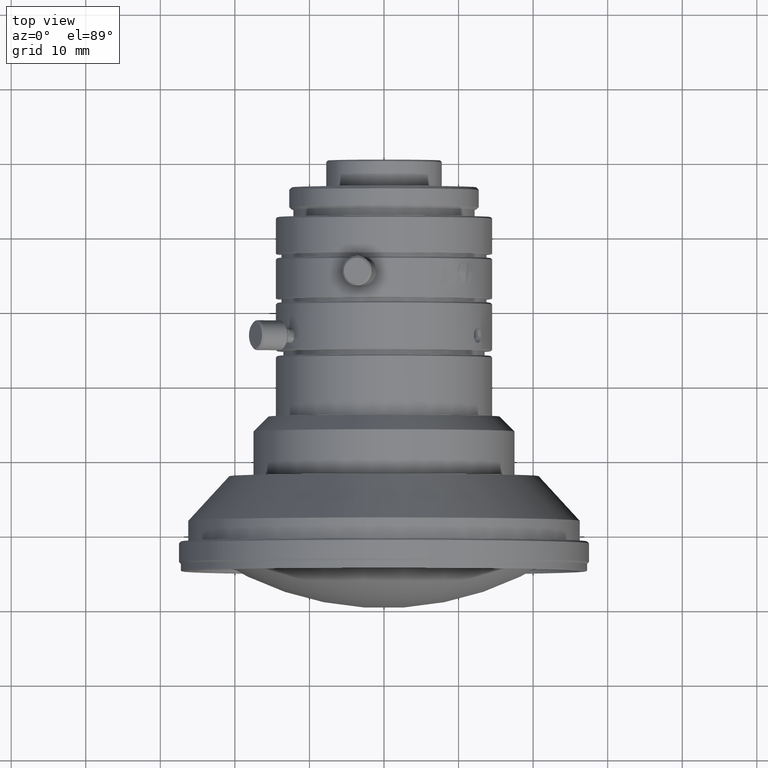
[diagram: clean part render]
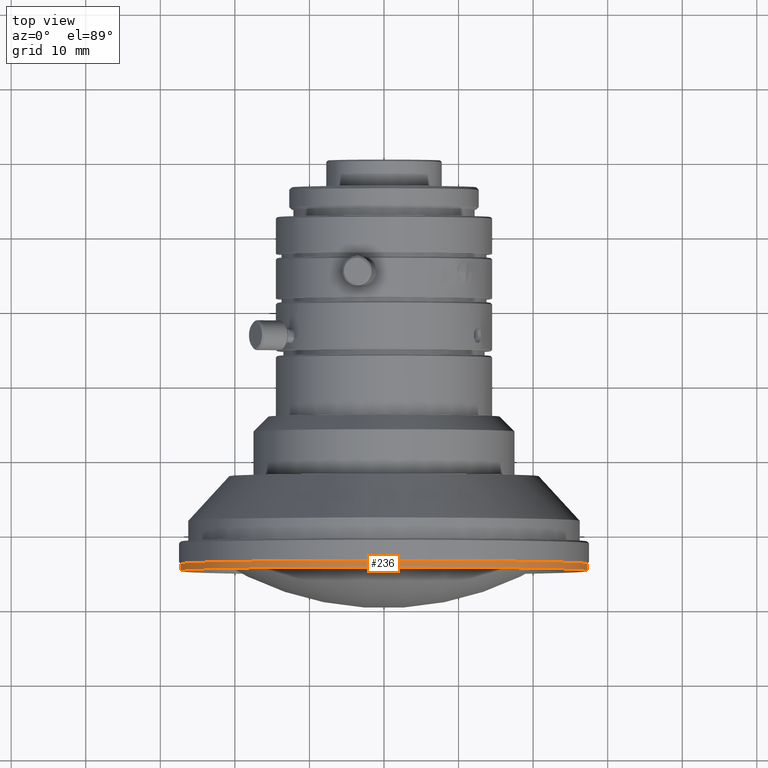
[diagram: same view with one face highlighted and labeled with its STEP entity id]
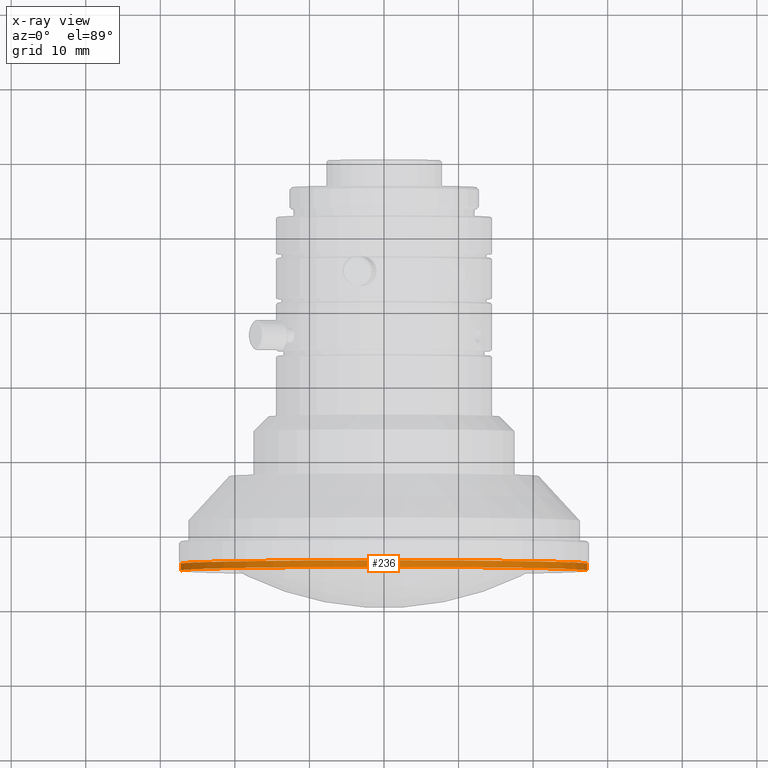
[diagram: x-ray of the same camera — body ghosted, the highlighted face saturated]
A machine part, top view. The second image highlights one B-rep face of the part: STEP entity #236.
The next image is the same camera in x-ray: the body ghosted, the highlighted face saturated — about 0% of this face is hidden behind the body in this view.
In plain terms, the highlighted cylindrical surface (partial cylindrical patch) has radius 27.25 mm, axis along (0, -1, 0).
Its self-contained STEP definition (entity closure, byte-faithful):
#236=ADVANCED_FACE('0:269',(#676),#677,.T.);
#676=FACE_OUTER_BOUND('',#1329,.T.);
#677=CYLINDRICAL_SURFACE('',#1330,0.02725);
#1329=EDGE_LOOP('',(#2680,#2681,#2682,#2683));
#1330=AXIS2_PLACEMENT_3D('',#2684,#2685,#2686);
#2680=ORIENTED_EDGE('',*,*,#4215,.T.);
#2681=ORIENTED_EDGE('',*,*,#4274,.T.);
#2682=ORIENTED_EDGE('',*,*,#4217,.T.);
#2683=ORIENTED_EDGE('',*,*,#4273,.F.);
#2684=CARTESIAN_POINT('',(7.63278329429795E-17,-0.0245252843298144,0.0));
#2685=DIRECTION('',(3.26943875618435E-15,-1.0,0.0));
#2686=DIRECTION('',(1.0,3.26943875618435E-15,0.0));
#4215=EDGE_CURVE('',#5214,#5209,#5215,.T.);
#4217=EDGE_CURVE('',#5211,#5216,#5218,.T.);
#4273=EDGE_CURVE('0:563',#5214,#5216,#5304,.T.);
#4274=EDGE_CURVE('0:566',#5209,#5211,#5305,.T.);
#5209=VERTEX_POINT('NONE',#6925);
#5211=VERTEX_POINT('',#6928);
#5214=VERTEX_POINT('NONE',#6932);
#5215=LINE('',#6933,#6934);
#5216=VERTEX_POINT('',#6935);
#5218=LINE('',#6937,#6938);
#5304=CIRCLE('',#7046,0.02725);
#5305=CIRCLE('',#7047,0.02725);
#6925=CARTESIAN_POINT('',(0.0272500000000001,-0.0240752843298144,0.0));
#6928=CARTESIAN_POINT('',(-0.0272499999999999,-0.0240752843298145,3.33716252767654E-18));
#6932=CARTESIAN_POINT('',(0.0272500000000001,-0.0249752843298144,0.0));
#6933=CARTESIAN_POINT('',(0.0272500000000001,-0.0245252843298144,-3.33716252767654E-18));
#6934=VECTOR('',#8184,1.0);
#6935=CARTESIAN_POINT('',(-0.0272499999999999,-0.0249752843298145,3.33716252767654E-18));
#6937=CARTESIAN_POINT('',(-0.0272499999999999,-0.0245252843298145,3.33716252767654E-18));
#6938=VECTOR('',#8188,1.0);
#7046=AXIS2_PLACEMENT_3D('',#8310,#8311,#8312);
#7047=AXIS2_PLACEMENT_3D('',#8313,#8314,#8315);
#8184=DIRECTION('',(-3.26943875618435E-15,1.0,-0.0));
#8188=DIRECTION('',(3.26943875618435E-15,-1.0,0.0));
#8310=CARTESIAN_POINT('',(8.32667268468867E-17,-0.0249752843298145,0.0));
#8311=DIRECTION('',(3.26943875618435E-15,-1.0,0.0));
#8312=DIRECTION('',(1.0,3.26943875618435E-15,0.0));
#8313=CARTESIAN_POINT('',(7.63278329429795E-17,-0.0240752843298145,0.0));
#8314=DIRECTION('',(3.26943875618435E-15,-1.0,0.0));
#8315=DIRECTION('',(1.0,3.26943875618435E-15,0.0));